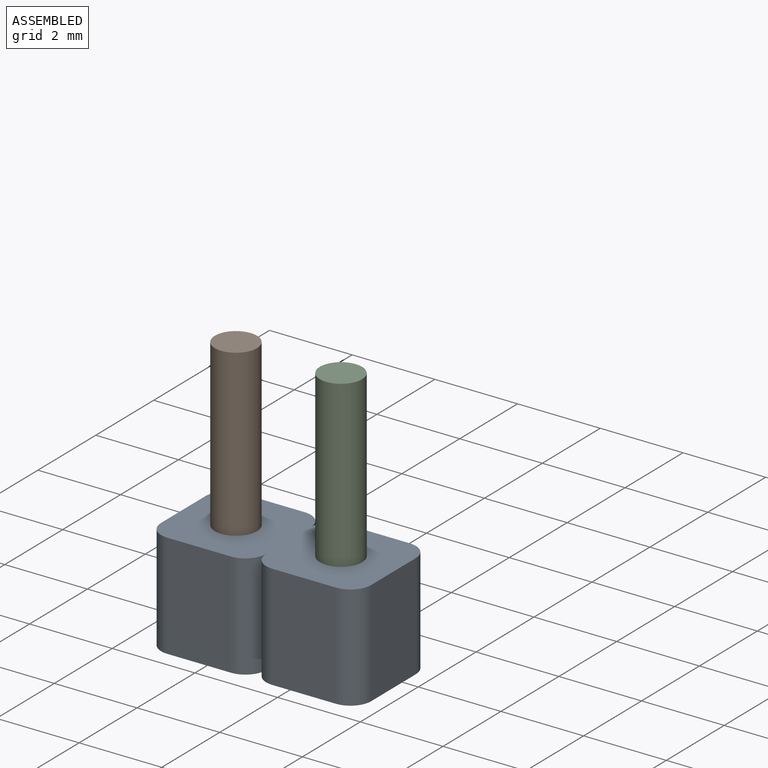
[diagram: assembled view]
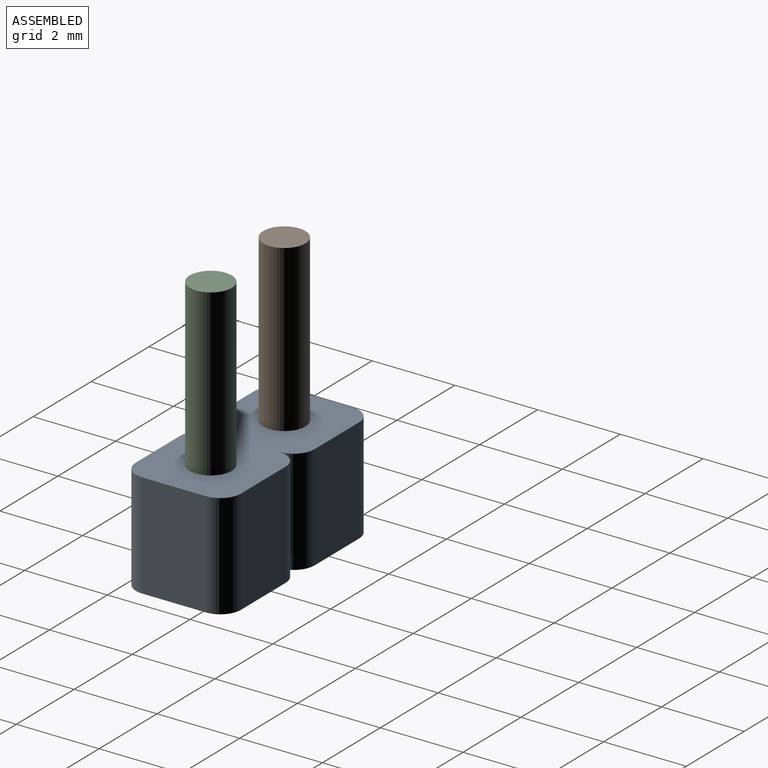
[diagram: assembled view, second angle]
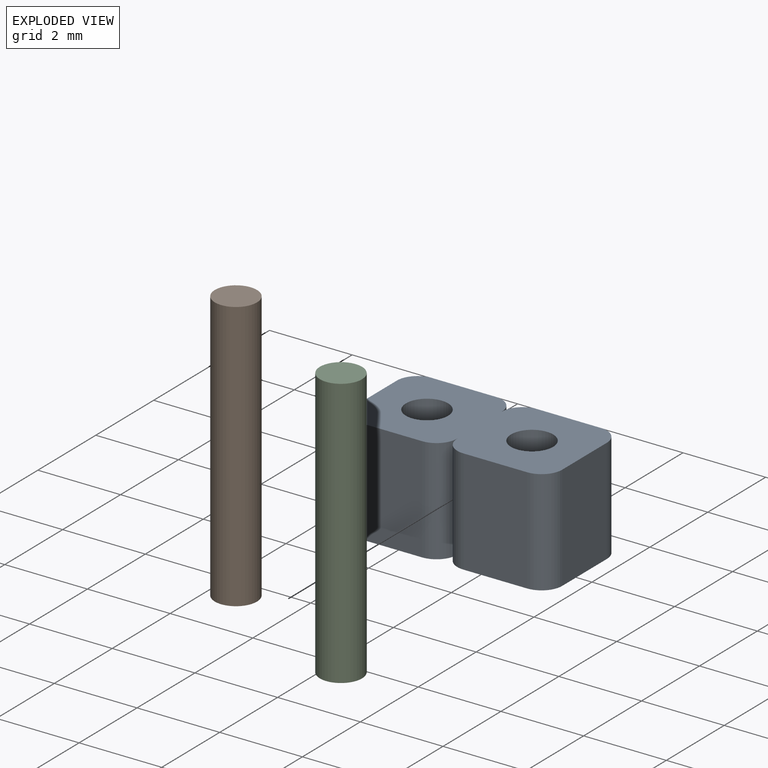
[diagram: exploded view]
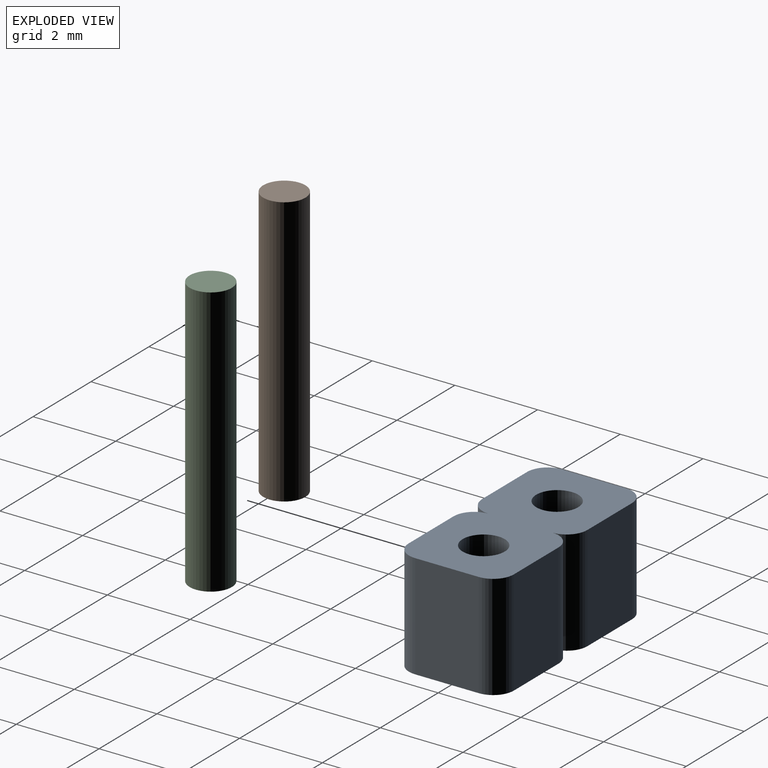
[diagram: exploded view, second angle]
ASSEMBLY  parts=3 mates=2
PART A: 18 faces, bbox 5.1x2.5x2.5 mm
  f0: cylinder r=0.5mm len=2.54mm, axis (0,0,-1), area 2mm2, adj f1,f14,f16,f17
  f1: cylinder r=0.5mm len=2.54mm, axis (0,0,-1), area 2mm2, adj f0,f2,f16,f17
  f2: plane 2.54x1.54mm, normal (0,-1,0), area 3.9mm2, adj f1,f3,f16,f17
  f3: cylinder r=0.5mm len=2.54mm, axis (0,0,-1), area 2mm2, adj f2,f4,f16,f17
  f4: plane 2.54x1.54mm, normal (1,0,0), area 3.9mm2, adj f3,f5,f16,f17
  f5: cylinder r=0.5mm len=2.54mm, axis (0,0,-1), area 2mm2, adj f4,f6,f16,f17
  f6: plane 2.54x1.54mm, normal (0,1,0), area 3.9mm2, adj f5,f7,f16,f17
  f7: cylinder r=0.5mm len=2.54mm, axis (0,0,-1), area 2mm2, adj f6,f8,f16,f17
  f8: cylinder r=0.5mm len=2.54mm, axis (0,0,-1), area 2mm2, adj f7,f9,f16,f17
  f9: plane 2.54x1.54mm, normal (0,1,0), area 3.9mm2, adj f8,f10,f16,f17
  f10: cylinder r=0.5mm len=2.54mm, axis (0,0,-1), area 2mm2, adj f9,f11,f16,f17
  f11: plane 2.54x1.54mm, normal (-1,0,0), area 3.9mm2, adj f10,f12,f16,f17
  f12: cylinder r=0.5mm len=2.54mm, axis (0,0,-1), area 2mm2, adj f11,f14,f16,f17
  f13: cylinder r=0.51mm len=2.54mm, axis (0,0,-1), area 8.1mm2, adj f16,f17
  f14: plane 2.54x1.54mm, normal (0,-1,0), area 3.9mm2, adj f0,f12,f16,f17
  f15: cylinder r=0.51mm len=2.54mm, axis (0,0,-1), area 8.1mm2, adj f16,f17
  f16: plane 5.08x2.54mm, normal (0,0,1), area 10.8mm2, adj f0,f1,f2,f3,f4,f5,f6,f7
  f17: plane 5.08x2.54mm, normal (0,0,-1), area 10.8mm2, adj f0,f1,f2,f3,f4,f5,f6,f7
PART B: 3 faces, bbox 1x1x6.5 mm
  f0: cylinder r=0.51mm len=6.54mm, axis (0,0,-1), area 21mm2, adj f1,f2
  f1: plane 1.02x1.02mm, normal (0,0,1), area 0.8mm2, adj f0
  f2: plane 1.02x1.02mm, normal (0,0,-1), area 0.8mm2, adj f0
PART C: same geometry as B
PLACE A t=(-4.76,-0.54,0.3)mm
PLACE B t=(-6.03,-0.54,0.3)mm
PLACE C t=(-3.49,-0.54,0.3)mm
MATE fastened B.f0 <-> A.f13  axis (0,0,-1) through (-6.03,-0.54,0.3)mm
MATE fastened A.f15 <-> C.f0  axis (0,0,-1) through (-3.49,-0.54,0.3)mm
